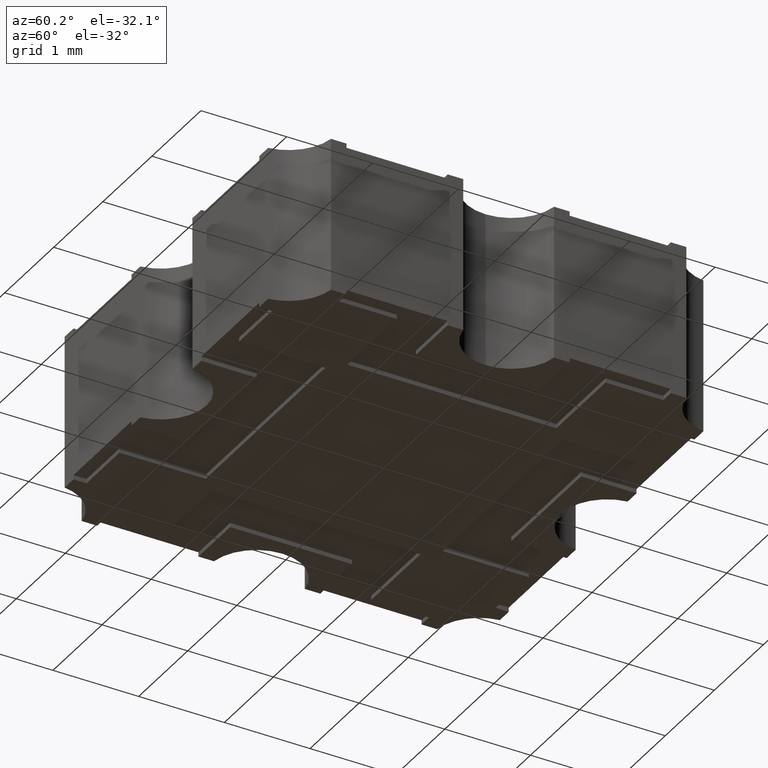
[diagram: clean part render]
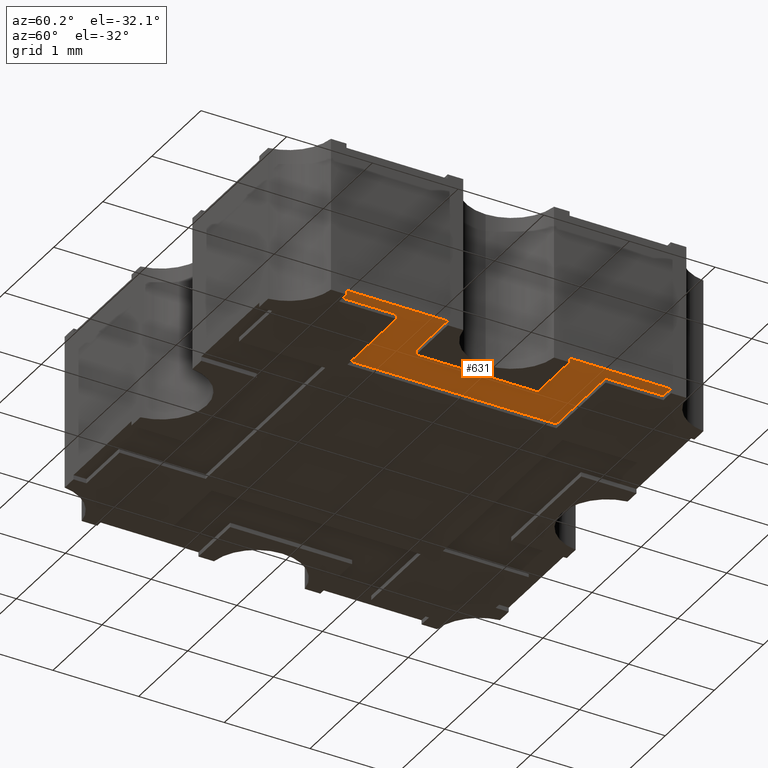
[diagram: same view with one face highlighted and labeled with its STEP entity id]
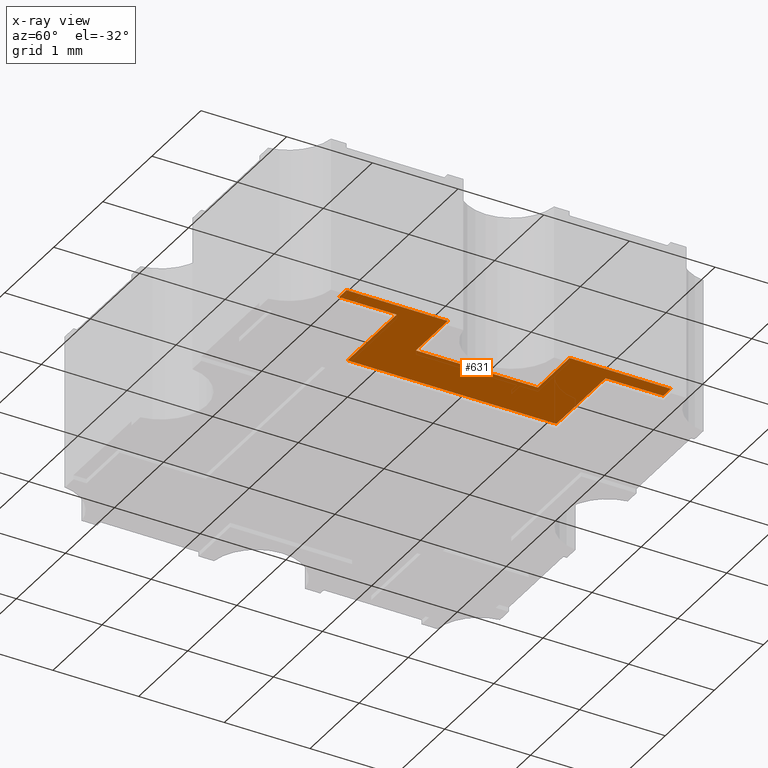
[diagram: x-ray of the same camera — body ghosted, the highlighted face saturated]
A machine part, auxiliary view. The second image highlights one B-rep face of the part: STEP entity #631.
The next image is the same camera in x-ray: the body ghosted, the highlighted face saturated — about 0% of this face is hidden behind the body in this view.
In plain terms, the highlighted planar face has unit normal (-0, 0, 1).
Its self-contained STEP definition (entity closure, byte-faithful):
#5 = FACE_OUTER_BOUND ( 'NONE', #520, .T. ) ;
#30 = CARTESIAN_POINT ( 'NONE',  ( 0.1000000000000806216, -0.02800000000008881496, 0.002000000000000000042 ) ) ;
#66 = VERTEX_POINT ( 'NONE', #1307 ) ;
#163 = DIRECTION ( 'NONE',  ( -1.000000000000000000, 0.000000000000000000, 0.000000000000000000 ) ) ;
#250 = ORIENTED_EDGE ( 'NONE', *, *, #1468, .F. ) ;
#288 = VERTEX_POINT ( 'NONE', #1604 ) ;
#301 = ORIENTED_EDGE ( 'NONE', *, *, #3159, .F. ) ;
#314 = VECTOR ( 'NONE', #3351, 39.37007874015748143 ) ;
#321 = DIRECTION ( 'NONE',  ( -1.000000000000000000, -1.673926466727276932E-16, 0.000000000000000000 ) ) ;
#331 = CARTESIAN_POINT ( 'NONE',  ( 0.09400000000007641132, -0.07450000000004347589, 0.002000000000000000042 ) ) ;
#337 = DIRECTION ( 'NONE',  ( -0.000000000000000000, 1.000000000000000000, -0.000000000000000000 ) ) ;
#366 = VECTOR ( 'NONE', #337, 39.37007874015748143 ) ;
#481 = ORIENTED_EDGE ( 'NONE', *, *, #655, .F. ) ;
#484 = VECTOR ( 'NONE', #2542, 39.37007874015748143 ) ;
#506 = CARTESIAN_POINT ( 'NONE',  ( 0.09400000000007641132, -0.04800000000033430303, 0.002000000000000000042 ) ) ;
#520 = EDGE_LOOP ( 'NONE', ( #3345, #640, #250, #2120, #3256, #301, #1622, #1449, #3640, #2914, #481, #1908 ) ) ;
#578 = EDGE_CURVE ( 'NONE', #3049, #1149, #3371, .T. ) ;
#586 = CARTESIAN_POINT ( 'NONE',  ( 0.07450000000040406245, 0.02799999999990054542, 0.002000000000000000042 ) ) ;
#631 = ADVANCED_FACE ( 'NONE', ( #5 ), #1239, .F. ) ;
#636 = DIRECTION ( 'NONE',  ( 1.000000000000000000, 0.000000000000000000, 0.000000000000000000 ) ) ;
#640 = ORIENTED_EDGE ( 'NONE', *, *, #578, .F. ) ;
#643 = CARTESIAN_POINT ( 'NONE',  ( 0.07450000000040406245, 0.02799999999990054542, 0.002000000000000000042 ) ) ;
#651 = CARTESIAN_POINT ( 'NONE',  ( 0.09400000000007641132, -0.07450000000004347589, 0.002000000000000000042 ) ) ;
#655 = EDGE_CURVE ( 'NONE', #3068, #3421, #2528, .T. ) ;
#729 = CARTESIAN_POINT ( 'NONE',  ( 0.1000000000003723744, 0.07450000000023582203, 0.002000000000000000042 ) ) ;
#797 = VECTOR ( 'NONE', #3782, 39.37007874015748143 ) ;
#829 = LINE ( 'NONE', #1998, #3504 ) ;
#931 = VECTOR ( 'NONE', #321, 39.37007874015748143 ) ;
#1041 = CARTESIAN_POINT ( 'NONE',  ( 0.07450000000040407633, -0.02800000000008881842, 0.002000000000000000042 ) ) ;
#1049 = CARTESIAN_POINT ( 'NONE',  ( 0.1000000000000806355, -0.07450000000004347589, 0.002000000000000000042 ) ) ;
#1149 = VERTEX_POINT ( 'NONE', #1049 ) ;
#1200 = VERTEX_POINT ( 'NONE', #506 ) ;
#1205 = CARTESIAN_POINT ( 'NONE',  ( 0.1000000000000806216, -0.02800000000008881496, 0.002000000000000000042 ) ) ;
#1209 = VECTOR ( 'NONE', #2161, 39.37007874015748143 ) ;
#1239 = PLANE ( 'NONE',  #1738 ) ;
#1240 = VERTEX_POINT ( 'NONE', #3585 ) ;
#1298 = CARTESIAN_POINT ( 'NONE',  ( 0.07450000000040407633, -0.02800000000008881842, 0.002000000000000000042 ) ) ;
#1307 = CARTESIAN_POINT ( 'NONE',  ( 0.05450000000000304601, -0.04800000000033430303, 0.002000000000000000042 ) ) ;
#1334 = LINE ( 'NONE', #1568, #2228 ) ;
#1375 = EDGE_CURVE ( 'NONE', #66, #1200, #1548, .T. ) ;
#1412 = EDGE_CURVE ( 'NONE', #3421, #2919, #3443, .T. ) ;
#1426 = VERTEX_POINT ( 'NONE', #1205 ) ;
#1449 = ORIENTED_EDGE ( 'NONE', *, *, #1938, .F. ) ;
#1458 = CARTESIAN_POINT ( 'NONE',  ( 0.1000000000003723744, 0.07450000000023582203, 0.002000000000000000042 ) ) ;
#1468 = EDGE_CURVE ( 'NONE', #1200, #3049, #1334, .T. ) ;
#1514 = EDGE_CURVE ( 'NONE', #1149, #1426, #3441, .T. ) ;
#1527 = CARTESIAN_POINT ( 'NONE',  ( 0.05450000000000304601, -0.04800000000033430303, 0.002000000000000000042 ) ) ;
#1539 = EDGE_CURVE ( 'NONE', #2919, #2781, #1950, .T. ) ;
#1548 = LINE ( 'NONE', #1527, #2415 ) ;
#1568 = CARTESIAN_POINT ( 'NONE',  ( 0.09400000000007641132, -0.04800000000033430303, 0.002000000000000000042 ) ) ;
#1575 = CARTESIAN_POINT ( 'NONE',  ( 0.09395844021029592374, 0.07450000000023582203, 0.002000000000000000042 ) ) ;
#1604 = CARTESIAN_POINT ( 'NONE',  ( 0.05450000000000304601, 0.04799999999985890553, 0.002000000000000000042 ) ) ;
#1622 = ORIENTED_EDGE ( 'NONE', *, *, #3788, .F. ) ;
#1738 = AXIS2_PLACEMENT_3D ( 'NONE', #2464, #2406, #636 ) ;
#1854 = LINE ( 'NONE', #3076, #931 ) ;
#1908 = ORIENTED_EDGE ( 'NONE', *, *, #3435, .F. ) ;
#1938 = EDGE_CURVE ( 'NONE', #2781, #3538, #3476, .T. ) ;
#1950 = LINE ( 'NONE', #729, #366 ) ;
#1998 = CARTESIAN_POINT ( 'NONE',  ( 0.09395844021029592374, 0.04799999999985890553, 0.002000000000000000042 ) ) ;
#2120 = ORIENTED_EDGE ( 'NONE', *, *, #1375, .F. ) ;
#2161 = DIRECTION ( 'NONE',  ( 1.000000000000000000, 0.000000000000000000, 0.000000000000000000 ) ) ;
#2228 = VECTOR ( 'NONE', #2579, 39.37007874015748143 ) ;
#2406 = DIRECTION ( 'NONE',  ( -0.000000000000000000, 0.000000000000000000, 1.000000000000000000 ) ) ;
#2415 = VECTOR ( 'NONE', #2751, 39.37007874015748143 ) ;
#2423 = EDGE_CURVE ( 'NONE', #288, #66, #3831, .T. ) ;
#2464 = CARTESIAN_POINT ( 'NONE',  ( 0.000000000000000000, 0.000000000000000000, 0.002000000000000000042 ) ) ;
#2494 = DIRECTION ( 'NONE',  ( -3.671838701165224728E-16, 1.000000000000000000, -0.000000000000000000 ) ) ;
#2528 = LINE ( 'NONE', #1041, #3044 ) ;
#2542 = DIRECTION ( 'NONE',  ( 0.000000000000000000, -1.000000000000000000, 0.000000000000000000 ) ) ;
#2550 = CARTESIAN_POINT ( 'NONE',  ( 0.1000000000003723744, 0.07450000000023582203, 0.002000000000000000042 ) ) ;
#2579 = DIRECTION ( 'NONE',  ( 0.000000000000000000, -1.000000000000000000, 0.000000000000000000 ) ) ;
#2590 = DIRECTION ( 'NONE',  ( -1.524468746464722198E-16, 1.000000000000000000, 0.000000000000000000 ) ) ;
#2751 = DIRECTION ( 'NONE',  ( 1.000000000000000000, 0.000000000000000000, 0.000000000000000000 ) ) ;
#2781 = VERTEX_POINT ( 'NONE', #1458 ) ;
#2914 = ORIENTED_EDGE ( 'NONE', *, *, #1412, .F. ) ;
#2919 = VERTEX_POINT ( 'NONE', #3360 ) ;
#3044 = VECTOR ( 'NONE', #2590, 39.37007874015748143 ) ;
#3049 = VERTEX_POINT ( 'NONE', #651 ) ;
#3068 = VERTEX_POINT ( 'NONE', #1298 ) ;
#3076 = CARTESIAN_POINT ( 'NONE',  ( 0.1000000000000806216, -0.02800000000008881496, 0.002000000000000000042 ) ) ;
#3159 = EDGE_CURVE ( 'NONE', #1240, #288, #829, .T. ) ;
#3256 = ORIENTED_EDGE ( 'NONE', *, *, #2423, .F. ) ;
#3316 = CARTESIAN_POINT ( 'NONE',  ( 0.09395844021029592374, 0.07450000000023582203, 0.002000000000000000042 ) ) ;
#3345 = ORIENTED_EDGE ( 'NONE', *, *, #1514, .F. ) ;
#3351 = DIRECTION ( 'NONE',  ( 0.000000000000000000, -1.000000000000000000, 0.000000000000000000 ) ) ;
#3360 = CARTESIAN_POINT ( 'NONE',  ( 0.1000000000003723744, 0.02799999999990055236, 0.002000000000000000042 ) ) ;
#3371 = LINE ( 'NONE', #331, #1209 ) ;
#3421 = VERTEX_POINT ( 'NONE', #586 ) ;
#3435 = EDGE_CURVE ( 'NONE', #1426, #3068, #1854, .T. ) ;
#3441 = LINE ( 'NONE', #30, #3909 ) ;
#3443 = LINE ( 'NONE', #643, #3967 ) ;
#3476 = LINE ( 'NONE', #2550, #797 ) ;
#3504 = VECTOR ( 'NONE', #163, 39.37007874015748143 ) ;
#3538 = VERTEX_POINT ( 'NONE', #1575 ) ;
#3585 = CARTESIAN_POINT ( 'NONE',  ( 0.09395844021029592374, 0.04799999999985890553, 0.002000000000000000042 ) ) ;
#3640 = ORIENTED_EDGE ( 'NONE', *, *, #1539, .F. ) ;
#3660 = DIRECTION ( 'NONE',  ( 1.000000000000000000, 1.673926466708123882E-16, 0.000000000000000000 ) ) ;
#3773 = CARTESIAN_POINT ( 'NONE',  ( 0.05450000000000304601, 0.04799999999985890553, 0.002000000000000000042 ) ) ;
#3782 = DIRECTION ( 'NONE',  ( -1.000000000000000000, 0.000000000000000000, 0.000000000000000000 ) ) ;
#3788 = EDGE_CURVE ( 'NONE', #3538, #1240, #3984, .T. ) ;
#3831 = LINE ( 'NONE', #3773, #484 ) ;
#3909 = VECTOR ( 'NONE', #2494, 39.37007874015748143 ) ;
#3967 = VECTOR ( 'NONE', #3660, 39.37007874015748143 ) ;
#3984 = LINE ( 'NONE', #3316, #314 ) ;